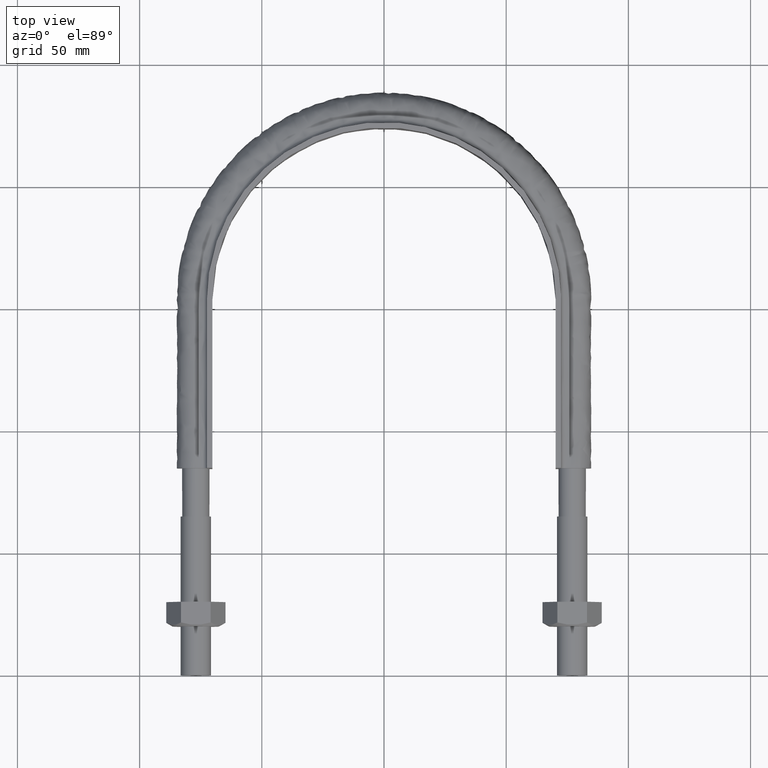
[diagram: clean part render]
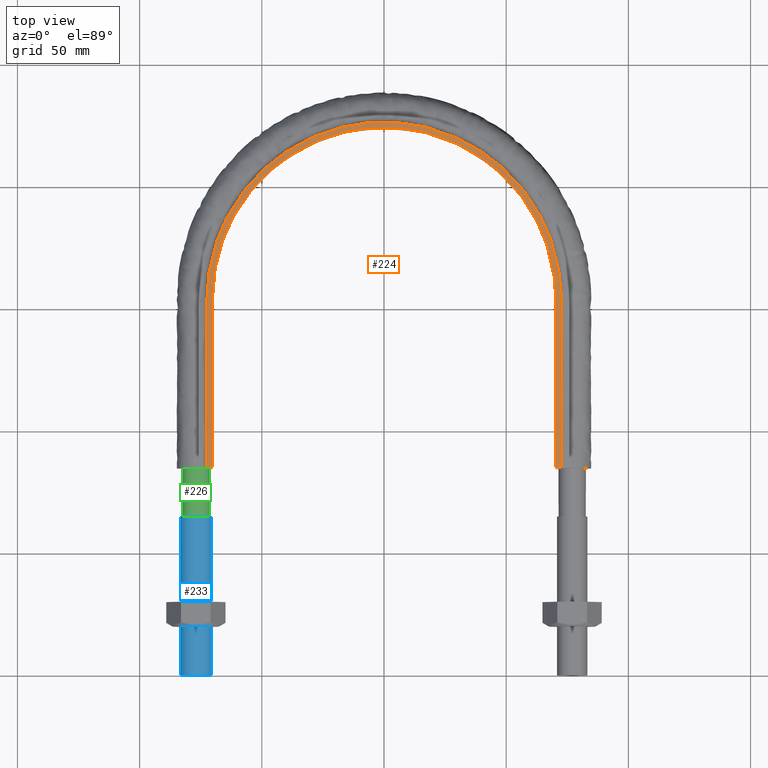
[diagram: same view with three faces highlighted in distinct colors, each labeled with its STEP entity id]
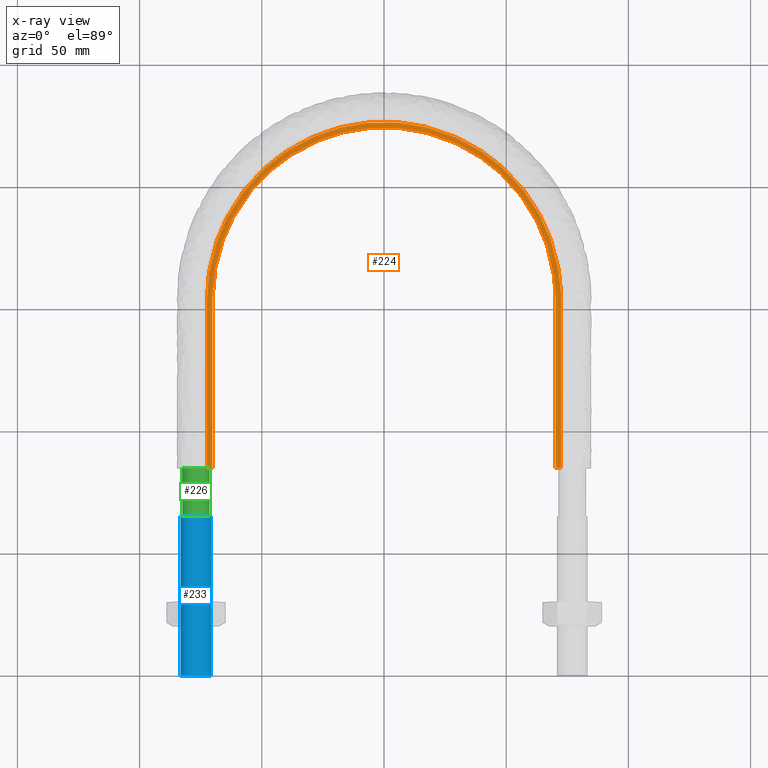
[diagram: x-ray of the same camera — body ghosted, the three highlighted faces saturated]
A machine part, top view with three faces highlighted in distinct colors.
The next image is the same camera in x-ray (body ghosted, the three faces saturated) — at least one of them is partly hidden behind the body in this view.
Their STEP definitions:

[orange] entity #224 — the highlighted planar face has unit normal (0, 0, 1).
#224 = ADVANCED_FACE( '', ( #273 ), #274, .T. );
#273 = FACE_OUTER_BOUND( '', #1045, .T. );
#274 = PLANE( '', #1046 );
#1045 = EDGE_LOOP( '', ( #1339, #1340, #1341, #1342 ) );
#1046 = AXIS2_PLACEMENT_3D( '', #1343, #1344, #1345 );
#1339 = ORIENTED_EDGE( '', *, *, #1600, .T. );
#1340 = ORIENTED_EDGE( '', *, *, #1612, .T. );
#1341 = ORIENTED_EDGE( '', *, *, #1610, .T. );
#1342 = ORIENTED_EDGE( '', *, *, #1611, .F. );
#1343 = CARTESIAN_POINT( '', ( 100.000000000000, 284.710000000000, 15.0000000000000 ) );
#1344 = DIRECTION( '', ( 0.000000000000000, 0.000000000000000, 1.00000000000000 ) );
#1345 = DIRECTION( '', ( 1.00000000000000, 0.000000000000000, 0.000000000000000 ) );
#1600 = EDGE_CURVE( '', #1684, #1682, #1685, .T. );
#1610 = EDGE_CURVE( '', #1698, #1700, #1702, .T. );
#1611 = EDGE_CURVE( '', #1684, #1700, #1703, .T. );
#1612 = EDGE_CURVE( '', #1682, #1698, #1704, .T. );
#1682 = VERTEX_POINT( '', #1830 );
#1684 = VERTEX_POINT( '', #1833 );
#1685 = LINE( '', #1834, #1835 );
#1698 = VERTEX_POINT( '', #1930 );
#1700 = VERTEX_POINT( '', #1933 );
#1702 = LINE( '', #1965, #1966 );
#1703 = B_SPLINE_CURVE_WITH_KNOTS( '', 3, ( #1967, #1968, #1969, #1970, #1971, #1972, #1973, #1974, #1975, #1976, #1977, #1978, #1979, #1980, #1981, #1982 ), .UNSPECIFIED., .F., .F., ( 4, 3, 1, 1, 1, 1, 1, 1, 3, 4 ), ( -9.00000000000000, -8.00000000000000, -7.00000000000000, -6.00000000000000, -5.00000000000000, -4.00000000000000, -3.00000000000000, -2.00000000000000, -1.00000000000000, 0.000000000000000 ), .UNSPECIFIED. );
#1704 = B_SPLINE_CURVE_WITH_KNOTS( '', 3, ( #1983, #1984, #1985, #1986, #1987, #1988, #1989, #1990, #1991, #1992, #1993, #1994, #1995, #1996, #1997, #1998 ), .UNSPECIFIED., .F., .F., ( 4, 3, 1, 1, 1, 1, 1, 1, 3, 4 ), ( -9.00000000000000, -8.00000000000000, -7.00000000000000, -6.00000000000000, -5.00000000000000, -4.00000000000000, -3.00000000000000, -2.00000000000000, -1.00000000000000, 0.000000000000000 ), .UNSPECIFIED. );
#1830 = CARTESIAN_POINT( '', ( -70.2500000000000, 84.7100000000000, 15.0000000000000 ) );
#1833 = CARTESIAN_POINT( '', ( -72.4500000000000, 84.7100000000000, 15.0000000000000 ) );
#1834 = CARTESIAN_POINT( '', ( -100.000000000000, 84.7100000000000, 15.0000000000000 ) );
#1835 = VECTOR( '', #2328, 1000.00000000000 );
#1930 = CARTESIAN_POINT( '', ( 70.2500000000000, 84.7100000000000, 15.0000000000000 ) );
#1933 = CARTESIAN_POINT( '', ( 72.4500000000000, 84.7100000000000, 15.0000000000000 ) );
#1965 = CARTESIAN_POINT( '', ( -100.000000000000, 84.7100000000000, 15.0000000000000 ) );
#1966 = VECTOR( '', #2332, 1000.00000000000 );
#1967 = CARTESIAN_POINT( '', ( -72.4500000000000, 84.7100000000000, 15.0000000000000 ) );
#1968 = CARTESIAN_POINT( '', ( -72.4500000000000, 107.726666666667, 15.0000000000000 ) );
#1969 = CARTESIAN_POINT( '', ( -72.4500000000000, 130.743333333333, 15.0000000000000 ) );
#1970 = CARTESIAN_POINT( '', ( -72.4500000000000, 153.760000000000, 15.0000000000000 ) );
#1971 = CARTESIAN_POINT( '', ( -72.4500000000000, 164.584175230504, 15.0000000000000 ) );
#1972 = CARTESIAN_POINT( '', ( -67.5035108460798, 186.273453800089, 15.0000000000000 ) );
#1973 = CARTESIAN_POINT( '', ( -46.7138789159022, 212.335910248336, 15.0000000000000 ) );
#1974 = CARTESIAN_POINT( '', ( -16.6719903583026, 226.805050635421, 15.0000000000000 ) );
#1975 = CARTESIAN_POINT( '', ( 16.6719903583027, 226.805050635421, 15.0000000000000 ) );
#1976 = CARTESIAN_POINT( '', ( 46.7138789159023, 212.335910248336, 15.0000000000000 ) );
#1977 = CARTESIAN_POINT( '', ( 67.5035108460798, 186.273453800089, 15.0000000000000 ) );
#1978 = CARTESIAN_POINT( '', ( 72.4500000000000, 164.584175230504, 15.0000000000000 ) );
#1979 = CARTESIAN_POINT( '', ( 72.4500000000000, 153.760000000000, 15.0000000000000 ) );
#1980 = CARTESIAN_POINT( '', ( 72.4500000000000, 130.743333333333, 15.0000000000000 ) );
#1981 = CARTESIAN_POINT( '', ( 72.4500000000000, 107.726666666667, 15.0000000000000 ) );
#1982 = CARTESIAN_POINT( '', ( 72.4500000000000, 84.7100000000000, 15.0000000000000 ) );
#1983 = CARTESIAN_POINT( '', ( -70.2500000000000, 84.7100000000000, 15.0000000000000 ) );
#1984 = CARTESIAN_POINT( '', ( -70.2500000000000, 107.726666666667, 15.0000000000000 ) );
#1985 = CARTESIAN_POINT( '', ( -70.2500000000000, 130.743333333333, 15.0000000000000 ) );
#1986 = CARTESIAN_POINT( '', ( -70.2500000000000, 153.760000000000, 15.0000000000000 ) );
#1987 = CARTESIAN_POINT( '', ( -70.2500000000000, 164.249418134732, 15.0000000000000 ) );
#1988 = CARTESIAN_POINT( '', ( -65.4537147955432, 185.288971927909, 15.0000000000000 ) );
#1989 = CARTESIAN_POINT( '', ( -45.2953760364684, 210.556467088273, 15.0000000000000 ) );
#1990 = CARTESIAN_POINT( '', ( -16.1657325420394, 224.587129579273, 15.0000000000000 ) );
#1991 = CARTESIAN_POINT( '', ( 16.1657325420395, 224.587129579273, 15.0000000000000 ) );
#1992 = CARTESIAN_POINT( '', ( 45.2953760364684, 210.556467088273, 15.0000000000000 ) );
#1993 = CARTESIAN_POINT( '', ( 65.4537147955432, 185.288971927909, 15.0000000000000 ) );
#1994 = CARTESIAN_POINT( '', ( 70.2500000000000, 164.249418134732, 15.0000000000000 ) );
#1995 = CARTESIAN_POINT( '', ( 70.2500000000000, 153.760000000000, 15.0000000000000 ) );
#1996 = CARTESIAN_POINT( '', ( 70.2500000000000, 130.743333333333, 15.0000000000000 ) );
#1997 = CARTESIAN_POINT( '', ( 70.2500000000000, 107.726666666667, 15.0000000000000 ) );
#1998 = CARTESIAN_POINT( '', ( 70.2500000000000, 84.7100000000000, 15.0000000000000 ) );
#2328 = DIRECTION( '', ( 1.00000000000000, -1.22460635382238E-016, 0.000000000000000 ) );
#2332 = DIRECTION( '', ( 1.00000000000000, -1.22460635382238E-016, 0.000000000000000 ) );

[blue] entity #233 — the highlighted cylindrical surface (bore or boss wall) has radius 6.25 mm, axis along (-0, -1, 0).
#233 = ADVANCED_FACE( '', ( #297, #298 ), #299, .T. );
#297 = FACE_OUTER_BOUND( '', #1245, .T. );
#298 = FACE_OUTER_BOUND( '', #1246, .T. );
#299 = CYLINDRICAL_SURFACE( '', #1247, 6.25000000000001 );
#1245 = EDGE_LOOP( '', ( #1426 ) );
#1246 = EDGE_LOOP( '', ( #1427 ) );
#1247 = AXIS2_PLACEMENT_3D( '', #1428, #1429, #1430 );
#1426 = ORIENTED_EDGE( '', *, *, #1634, .F. );
#1427 = ORIENTED_EDGE( '', *, *, #1633, .T. );
#1428 = CARTESIAN_POINT( '', ( -77.0000000000000, 65.0000000000000, -1.98998532496136E-014 ) );
#1429 = DIRECTION( '', ( -2.44921270764475E-016, -1.00000000000000, 3.06151588455594E-016 ) );
#1430 = DIRECTION( '', ( 1.00000000000000, -2.44921270764475E-016, 0.000000000000000 ) );
#1633 = EDGE_CURVE( '', #1745, #1745, #1746, .T. );
#1634 = EDGE_CURVE( '', #1747, #1747, #1748, .T. );
#1745 = VERTEX_POINT( '', #2087 );
#1746 = CIRCLE( '', #2088, 6.25000000000001 );
#1747 = VERTEX_POINT( '', #2089 );
#1748 = CIRCLE( '', #2090, 6.25000000000001 );
#2087 = CARTESIAN_POINT( '', ( -77.0000000000000, 65.0000000000000, -6.25000000000003 ) );
#2088 = AXIS2_PLACEMENT_3D( '', #2345, #2346, #2347 );
#2089 = CARTESIAN_POINT( '', ( -77.0000000000000, 1.19643403799670E-014, -6.25000000000001 ) );
#2090 = AXIS2_PLACEMENT_3D( '', #2348, #2349, #2350 );
#2345 = CARTESIAN_POINT( '', ( -77.0000000000000, 65.0000000000000, -1.98998532496136E-014 ) );
#2346 = DIRECTION( '', ( -2.44921270764475E-016, -1.00000000000000, 3.06151588455594E-016 ) );
#2347 = DIRECTION( '', ( 0.000000000000000, -3.06151588455594E-016, -1.00000000000000 ) );
#2348 = CARTESIAN_POINT( '', ( -77.0000000000000, 1.38777878078145E-014, 3.08148791101958E-030 ) );
#2349 = DIRECTION( '', ( -2.44921270764475E-016, -1.00000000000000, 3.06151588455594E-016 ) );
#2350 = DIRECTION( '', ( 0.000000000000000, -3.06151588455594E-016, -1.00000000000000 ) );

[green] entity #226 — the highlighted cylindrical surface (bore or boss wall) has radius 5.6 mm, axis along (-0, -1, 0).
#226 = ADVANCED_FACE( '', ( #277, #278 ), #279, .T. );
#277 = FACE_OUTER_BOUND( '', #1050, .T. );
#278 = FACE_OUTER_BOUND( '', #1051, .T. );
#279 = CYLINDRICAL_SURFACE( '', #1052, 5.59999999999999 );
#1050 = EDGE_LOOP( '', ( #1367 ) );
#1051 = EDGE_LOOP( '', ( #1368, #1369, #1370, #1371, #1372, #1373, #1374, #1375 ) );
#1052 = AXIS2_PLACEMENT_3D( '', #1376, #1377, #1378 );
#1367 = ORIENTED_EDGE( '', *, *, #1613, .T. );
#1368 = ORIENTED_EDGE( '', *, *, #1614, .F. );
#1369 = ORIENTED_EDGE( '', *, *, #1615, .F. );
#1370 = ORIENTED_EDGE( '', *, *, #1616, .F. );
#1371 = ORIENTED_EDGE( '', *, *, #1617, .F. );
#1372 = ORIENTED_EDGE( '', *, *, #1618, .F. );
#1373 = ORIENTED_EDGE( '', *, *, #1619, .F. );
#1374 = ORIENTED_EDGE( '', *, *, #1620, .F. );
#1375 = ORIENTED_EDGE( '', *, *, #1621, .F. );
#1376 = CARTESIAN_POINT( '', ( -77.0000000000000, 84.7100000000000, -1.46064922852164E-014 ) );
#1377 = DIRECTION( '', ( -2.44921270764475E-016, -1.00000000000000, 3.06151588455594E-016 ) );
#1378 = DIRECTION( '', ( 1.00000000000000, -2.44921270764475E-016, 0.000000000000000 ) );
#1613 = EDGE_CURVE( '', #1705, #1705, #1706, .F. );
#1614 = EDGE_CURVE( '', #1707, #1708, #1709, .T. );
#1615 = EDGE_CURVE( '', #1710, #1707, #1711, .T. );
#1616 = EDGE_CURVE( '', #1712, #1710, #1713, .T. );
#1617 = EDGE_CURVE( '', #1714, #1712, #1715, .T. );
#1618 = EDGE_CURVE( '', #1716, #1714, #1717, .T. );
#1619 = EDGE_CURVE( '', #1718, #1716, #1719, .T. );
#1620 = EDGE_CURVE( '', #1720, #1718, #1721, .T. );
#1621 = EDGE_CURVE( '', #1708, #1720, #1722, .T. );
#1705 = VERTEX_POINT( '', #1999 );
#1706 = CIRCLE( '', #2000, 5.59999999999999 );
#1707 = VERTEX_POINT( '', #2001 );
#1708 = VERTEX_POINT( '', #2002 );
#1709 = B_SPLINE_CURVE_WITH_KNOTS( '', 3, ( #2003, #2004, #2005, #2006 ), .UNSPECIFIED., .F., .F., ( 4, 4 ), ( 0.000000000000000, 1.00000000000000 ), .UNSPECIFIED. );
#1710 = VERTEX_POINT( '', #2007 );
#1711 = B_SPLINE_CURVE_WITH_KNOTS( '', 3, ( #2008, #2009, #2010, #2011 ), .UNSPECIFIED., .F., .F., ( 4, 4 ), ( 0.000000000000000, 1.00000000000000 ), .UNSPECIFIED. );
#1712 = VERTEX_POINT( '', #2012 );
#1713 = B_SPLINE_CURVE_WITH_KNOTS( '', 3, ( #2013, #2014, #2015, #2016 ), .UNSPECIFIED., .F., .F., ( 4, 4 ), ( 0.000000000000000, 1.00000000000000 ), .UNSPECIFIED. );
#1714 = VERTEX_POINT( '', #2017 );
#1715 = B_SPLINE_CURVE_WITH_KNOTS( '', 3, ( #2018, #2019, #2020, #2021 ), .UNSPECIFIED., .F., .F., ( 4, 4 ), ( 0.000000000000000, 1.00000000000000 ), .UNSPECIFIED. );
#1716 = VERTEX_POINT( '', #2022 );
#1717 = B_SPLINE_CURVE_WITH_KNOTS( '', 3, ( #2023, #2024, #2025, #2026 ), .UNSPECIFIED., .F., .F., ( 4, 4 ), ( 0.000000000000000, 1.00000000000000 ), .UNSPECIFIED. );
#1718 = VERTEX_POINT( '', #2027 );
#1719 = B_SPLINE_CURVE_WITH_KNOTS( '', 3, ( #2028, #2029, #2030, #2031 ), .UNSPECIFIED., .F., .F., ( 4, 4 ), ( 0.000000000000000, 1.00000000000000 ), .UNSPECIFIED. );
#1720 = VERTEX_POINT( '', #2032 );
#1721 = B_SPLINE_CURVE_WITH_KNOTS( '', 3, ( #2033, #2034, #2035, #2036 ), .UNSPECIFIED., .F., .F., ( 4, 4 ), ( 0.000000000000000, 1.00000000000000 ), .UNSPECIFIED. );
#1722 = B_SPLINE_CURVE_WITH_KNOTS( '', 3, ( #2037, #2038, #2039, #2040 ), .UNSPECIFIED., .F., .F., ( 4, 4 ), ( 0.000000000000000, 1.00000000000000 ), .UNSPECIFIED. );
#1999 = CARTESIAN_POINT( '', ( -77.0000000000000, 65.0000000000000, -5.60000000000000 ) );
#2000 = AXIS2_PLACEMENT_3D( '', #2333, #2334, #2335 );
#2001 = CARTESIAN_POINT( '', ( -73.0402020253695, 84.7100000000000, 3.95979797465885 ) );
#2002 = CARTESIAN_POINT( '', ( -71.4000000000000, 84.7100000000001, 6.75566890369075E-014 ) );
#2003 = CARTESIAN_POINT( '', ( -73.0402020253695, 84.7100000000000, 3.95979797465885 ) );
#2004 = CARTESIAN_POINT( '', ( -72.0058874503101, 84.7100000000000, 2.92548339960728 ) );
#2005 = CARTESIAN_POINT( '', ( -71.4000000000000, 84.7100000000000, 1.46274169980364 ) );
#2006 = CARTESIAN_POINT( '', ( -71.4000000000000, 84.7100000000000, -1.08420217248550E-016 ) );
#2007 = CARTESIAN_POINT( '', ( -76.9999999999997, 84.7100000000000, 5.59999999999998 ) );
#2008 = CARTESIAN_POINT( '', ( -77.0000000000142, 84.7100000000000, 5.59999999999976 ) );
#2009 = CARTESIAN_POINT( '', ( -75.5372583002177, 84.7100000000000, 5.60000000000331 ) );
#2010 = CARTESIAN_POINT( '', ( -74.0745166004211, 84.7100000000000, 4.99411254970261 ) );
#2011 = CARTESIAN_POINT( '', ( -73.0402020253695, 84.7100000000000, 3.95979797465885 ) );
#2012 = CARTESIAN_POINT( '', ( -80.9597979746449, 84.7100000000000, 3.95979797464440 ) );
#2013 = CARTESIAN_POINT( '', ( -80.9597979746448, 84.7100000000000, 3.95979797464448 ) );
#2014 = CARTESIAN_POINT( '', ( -79.9254833995940, 84.7100000000000, 4.99411254969539 ) );
#2015 = CARTESIAN_POINT( '', ( -78.4627416997969, 84.7100000000000, 5.60000000000004 ) );
#2016 = CARTESIAN_POINT( '', ( -76.9999999999998, 84.7100000000000, 5.59999999999999 ) );
#2017 = CARTESIAN_POINT( '', ( -82.6000000000000, 84.7100000000000, 1.41965139748640E-014 ) );
#2018 = CARTESIAN_POINT( '', ( -82.6000000000000, 84.7100000000000, 1.78772390122641E-011 ) );
#2019 = CARTESIAN_POINT( '', ( -82.5999999999950, 84.7100000000000, 1.46274169980877 ) );
#2020 = CARTESIAN_POINT( '', ( -81.9941125496912, 84.7100000000000, 2.92548339959790 ) );
#2021 = CARTESIAN_POINT( '', ( -80.9597979746449, 84.7100000000000, 3.95979797464440 ) );
#2022 = CARTESIAN_POINT( '', ( -80.9597979746507, 84.7100000000000, -3.95979797463863 ) );
#2023 = CARTESIAN_POINT( '', ( -80.9597979746601, 84.7100000000000, -3.95979797462946 ) );
#2024 = CARTESIAN_POINT( '', ( -81.9941125497051, 84.7100000000000, -2.92548339957650 ) );
#2025 = CARTESIAN_POINT( '', ( -82.6000000000050, 84.7100000000000, -1.46274169977980 ) );
#2026 = CARTESIAN_POINT( '', ( -82.6000000000000, 84.7100000000000, 1.81433471677582E-011 ) );
#2027 = CARTESIAN_POINT( '', ( -77.0000000000206, 84.7100000000000, -5.60000000000001 ) );
#2028 = CARTESIAN_POINT( '', ( -77.0000000000268, 84.7100000000000, -5.60000000000009 ) );
#2029 = CARTESIAN_POINT( '', ( -78.4627416998170, 84.7100000000000, -5.59999999999284 ) );
#2030 = CARTESIAN_POINT( '', ( -79.9254833996052, 84.7100000000000, -4.99411254968746 ) );
#2031 = CARTESIAN_POINT( '', ( -80.9597979746507, 84.7100000000000, -3.95979797463860 ) );
#2032 = CARTESIAN_POINT( '', ( -73.0402020253552, 84.7100000000000, -3.95979797464450 ) );
#2033 = CARTESIAN_POINT( '', ( -73.0402020253894, 84.7100000000000, -3.95979797467909 ) );
#2034 = CARTESIAN_POINT( '', ( -74.0745166004417, 84.7100000000000, -4.99411254971303 ) );
#2035 = CARTESIAN_POINT( '', ( -75.5372583002305, 84.7100000000000, -5.60000000000568 ) );
#2036 = CARTESIAN_POINT( '', ( -77.0000000000206, 84.7100000000000, -5.59999999999999 ) );
#2037 = CARTESIAN_POINT( '', ( -71.4000000000000, 84.7100000000000, 6.19079440489223E-014 ) );
#2038 = CARTESIAN_POINT( '', ( -71.4000000000000, 84.7100000000000, -1.46274169979686 ) );
#2039 = CARTESIAN_POINT( '', ( -72.0058874503045, 84.7100000000000, -2.92548339959379 ) );
#2040 = CARTESIAN_POINT( '', ( -73.0402020253552, 84.7100000000000, -3.95979797464454 ) );
#2333 = CARTESIAN_POINT( '', ( -77.0000000000000, 65.0000000000000, -8.57224447675665E-015 ) );
#2334 = DIRECTION( '', ( -2.44921270764475E-016, -1.00000000000000, 3.06151588455594E-016 ) );
#2335 = DIRECTION( '', ( 0.000000000000000, -3.06151588455594E-016, -1.00000000000000 ) );